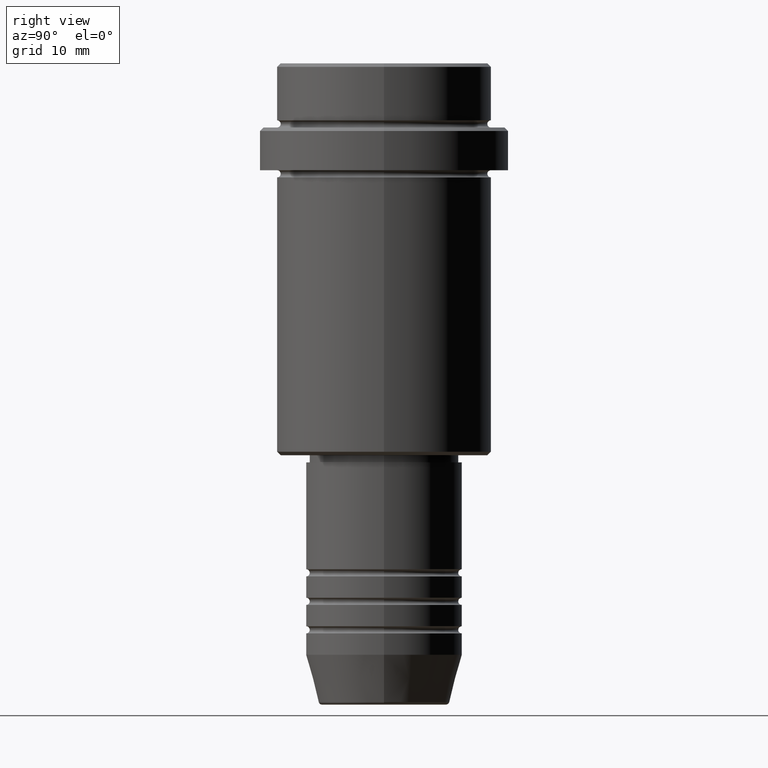
[diagram: clean part render]
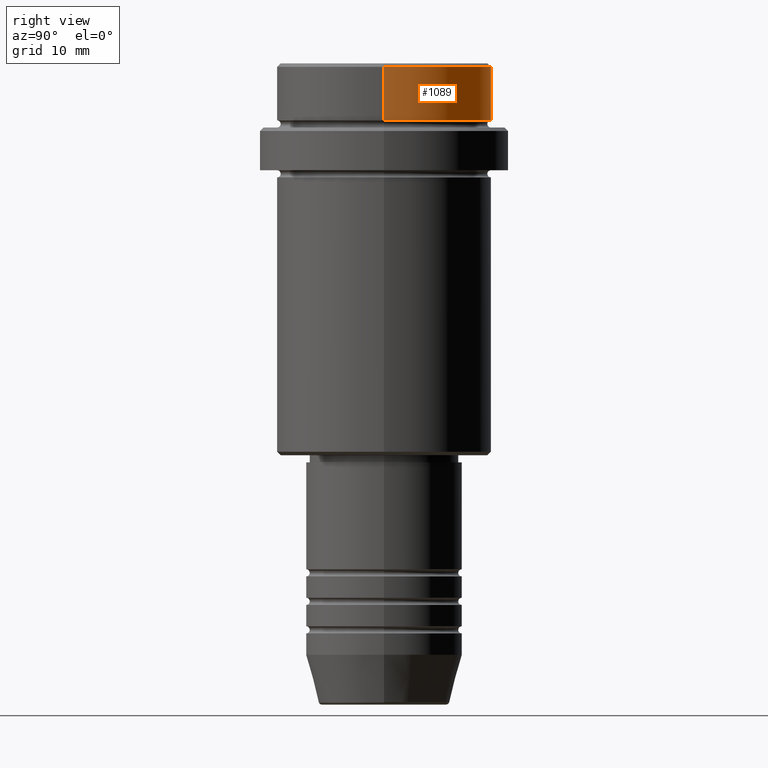
[diagram: same view with one face highlighted and labeled with its STEP entity id]
A machine part, right view. The second image highlights one B-rep face of the part: STEP entity #1089.
In plain terms, the highlighted cylindrical surface (partial cylindrical patch) has radius 15 mm, axis along (-0, -0, 1).
Its self-contained STEP definition (entity closure, byte-faithful):
#30 = ORIENTED_EDGE ( 'NONE', *, *, #874, .F. ) ;
#35 = DIRECTION ( 'NONE',  ( 0.000000000000000000, 0.000000000000000000, -1.000000000000000000 ) ) ;
#36 = DIRECTION ( 'NONE',  ( -0.000000000000000000, -0.000000000000000000, 1.000000000000000000 ) ) ;
#43 = CARTESIAN_POINT ( 'NONE',  ( 15.00000000000000000, 0.000000000000000000, -0.4999999999999831246 ) ) ;
#47 = VERTEX_POINT ( 'NONE', #1401 ) ;
#140 = EDGE_CURVE ( 'NONE', #537, #47, #979, .T. ) ;
#141 = CARTESIAN_POINT ( 'NONE',  ( 15.00000000000000000, 0.000000000000000000, 0.000000000000000000 ) ) ;
#239 = CYLINDRICAL_SURFACE ( 'NONE', #298, 15.00000000000000000 ) ;
#272 = VECTOR ( 'NONE', #659, 1000.000000000000000 ) ;
#298 = AXIS2_PLACEMENT_3D ( 'NONE', #471, #304, #892 ) ;
#299 = CARTESIAN_POINT ( 'NONE',  ( 15.00000000000000000, 0.000000000000000000, -7.999999999999998224 ) ) ;
#304 = DIRECTION ( 'NONE',  ( -0.000000000000000000, -0.000000000000000000, 1.000000000000000000 ) ) ;
#381 = ORIENTED_EDGE ( 'NONE', *, *, #1258, .T. ) ;
#470 = ORIENTED_EDGE ( 'NONE', *, *, #1202, .T. ) ;
#471 = CARTESIAN_POINT ( 'NONE',  ( 0.000000000000000000, 0.000000000000000000, 0.000000000000000000 ) ) ;
#537 = VERTEX_POINT ( 'NONE', #1367 ) ;
#601 = EDGE_LOOP ( 'NONE', ( #470, #1069, #381, #30 ) ) ;
#651 = AXIS2_PLACEMENT_3D ( 'NONE', #1248, #945, #727 ) ;
#659 = DIRECTION ( 'NONE',  ( -0.000000000000000000, -0.000000000000000000, 1.000000000000000000 ) ) ;
#727 = DIRECTION ( 'NONE',  ( 1.000000000000000000, 0.000000000000000000, 0.000000000000000000 ) ) ;
#742 = AXIS2_PLACEMENT_3D ( 'NONE', #813, #35, #1359 ) ;
#806 = VERTEX_POINT ( 'NONE', #43 ) ;
#813 = CARTESIAN_POINT ( 'NONE',  ( 0.000000000000000000, 0.000000000000000000, -0.4999999999999831246 ) ) ;
#817 = LINE ( 'NONE', #141, #1142 ) ;
#874 = EDGE_CURVE ( 'NONE', #933, #806, #817, .T. ) ;
#892 = DIRECTION ( 'NONE',  ( 1.000000000000000000, 0.000000000000000000, 0.000000000000000000 ) ) ;
#903 = CIRCLE ( 'NONE', #742, 15.00000000000000000 ) ;
#933 = VERTEX_POINT ( 'NONE', #299 ) ;
#945 = DIRECTION ( 'NONE',  ( -0.000000000000000000, -0.000000000000000000, 1.000000000000000000 ) ) ;
#979 = LINE ( 'NONE', #992, #272 ) ;
#992 = CARTESIAN_POINT ( 'NONE',  ( -15.00000000000000000, 1.836970198721029589E-15, 0.000000000000000000 ) ) ;
#1035 = CIRCLE ( 'NONE', #651, 15.00000000000000000 ) ;
#1069 = ORIENTED_EDGE ( 'NONE', *, *, #140, .T. ) ;
#1089 = ADVANCED_FACE ( 'NONE', ( #1121 ), #239, .T. ) ;
#1121 = FACE_OUTER_BOUND ( 'NONE', #601, .T. ) ;
#1142 = VECTOR ( 'NONE', #36, 1000.000000000000000 ) ;
#1202 = EDGE_CURVE ( 'NONE', #933, #537, #1035, .T. ) ;
#1248 = CARTESIAN_POINT ( 'NONE',  ( 0.000000000000000000, 0.000000000000000000, -7.999999999999998224 ) ) ;
#1258 = EDGE_CURVE ( 'NONE', #47, #806, #903, .T. ) ;
#1359 = DIRECTION ( 'NONE',  ( 1.000000000000000000, 0.000000000000000000, 0.000000000000000000 ) ) ;
#1367 = CARTESIAN_POINT ( 'NONE',  ( -15.00000000000000000, 1.836970198721029589E-15, -7.999999999999998224 ) ) ;
#1401 = CARTESIAN_POINT ( 'NONE',  ( -15.00000000000000000, 1.836970198721029589E-15, -0.4999999999999831246 ) ) ;